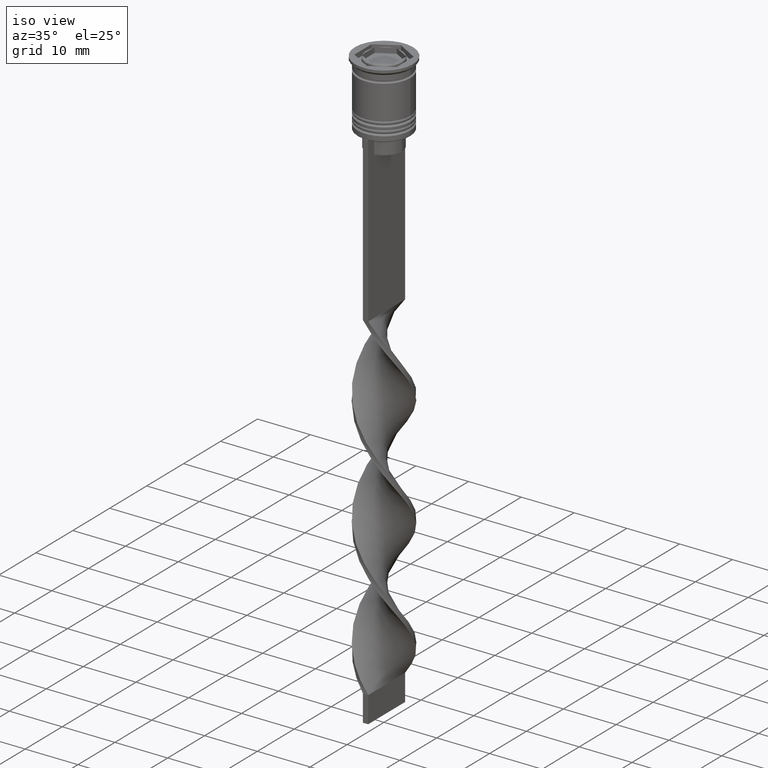
[diagram: clean part render]
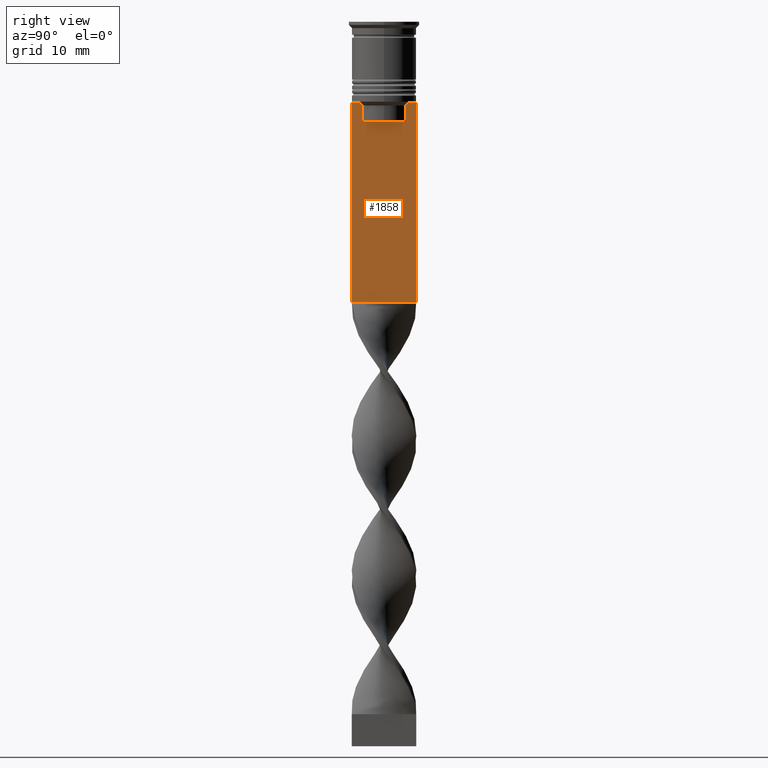
[diagram: tour spotlight — one face highlighted and labeled with its STEP entity id]
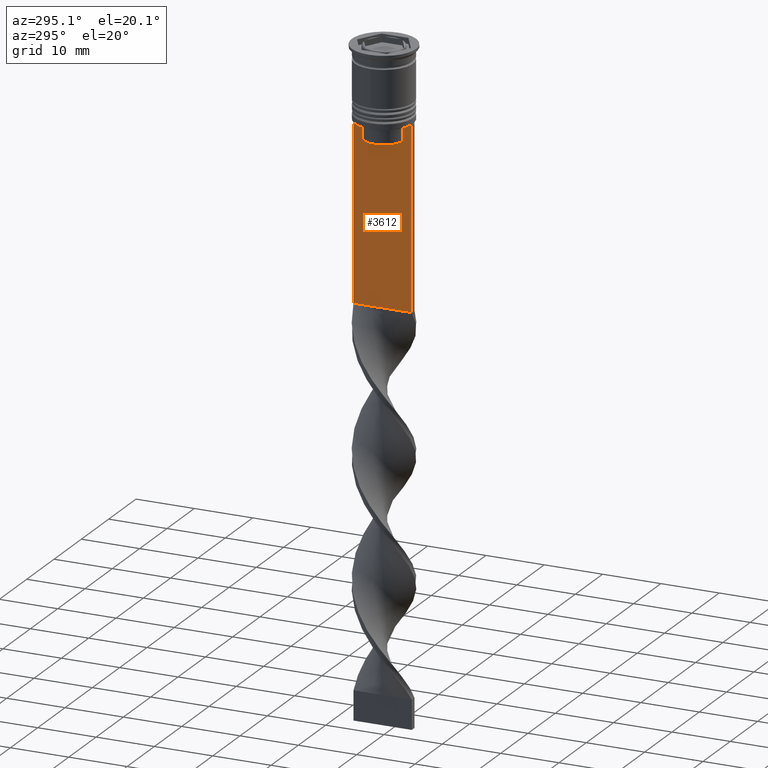
[diagram: tour spotlight — one face highlighted and labeled with its STEP entity id]
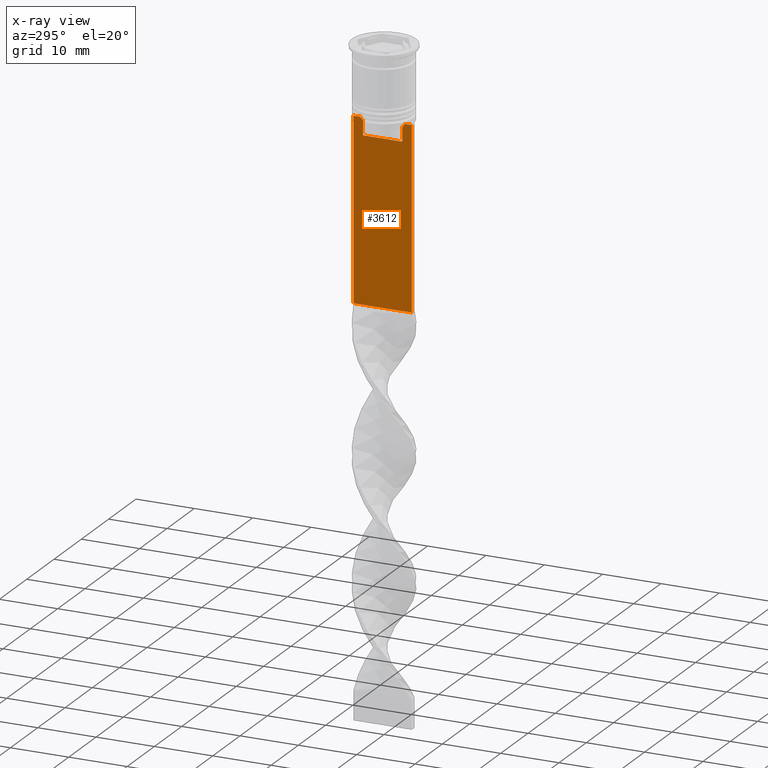
[diagram: x-ray of the same camera — body ghosted, this tour face saturated]
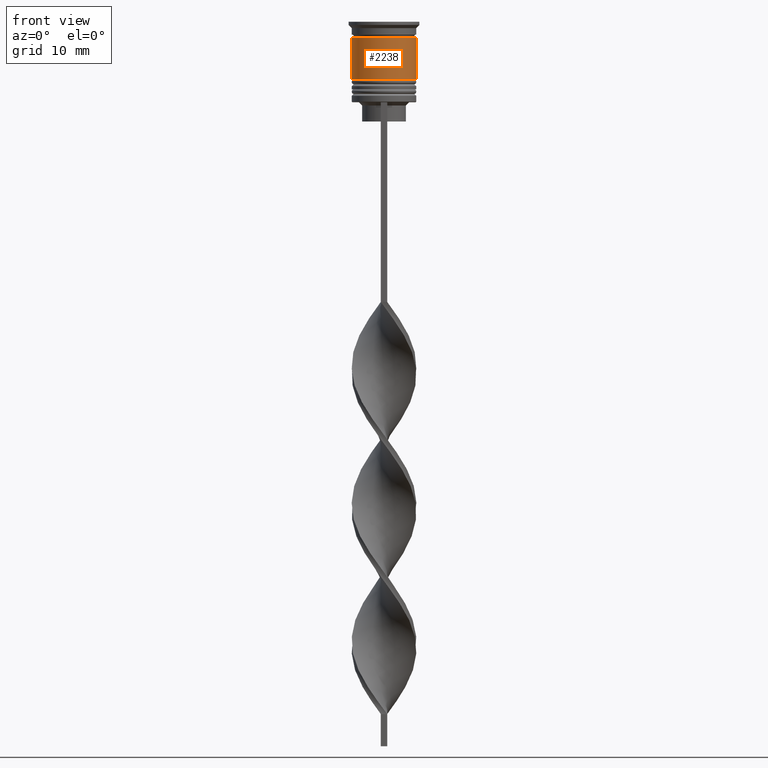
[diagram: tour spotlight — one face highlighted and labeled with its STEP entity id]
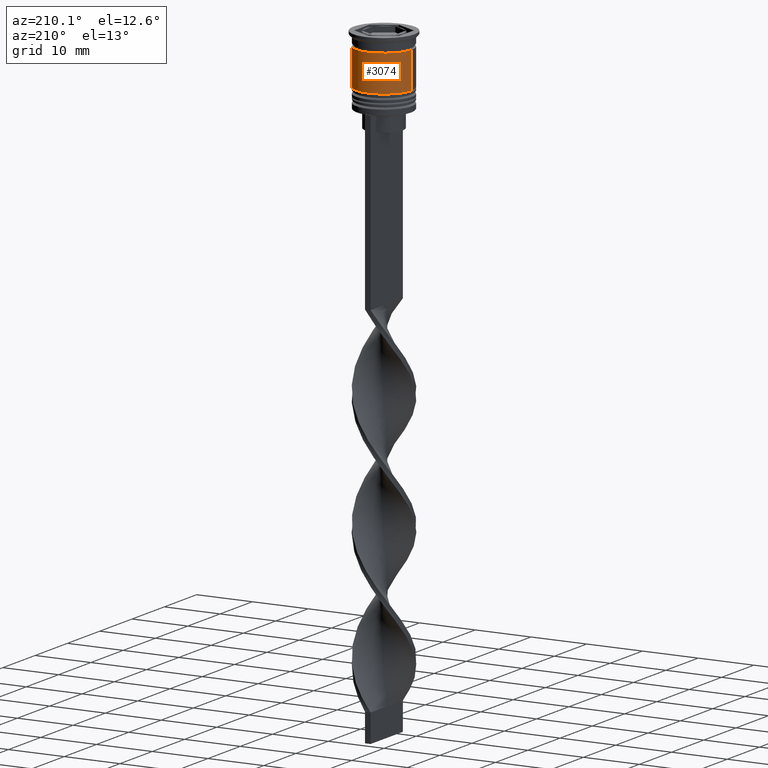
[diagram: tour spotlight — one face highlighted and labeled with its STEP entity id]
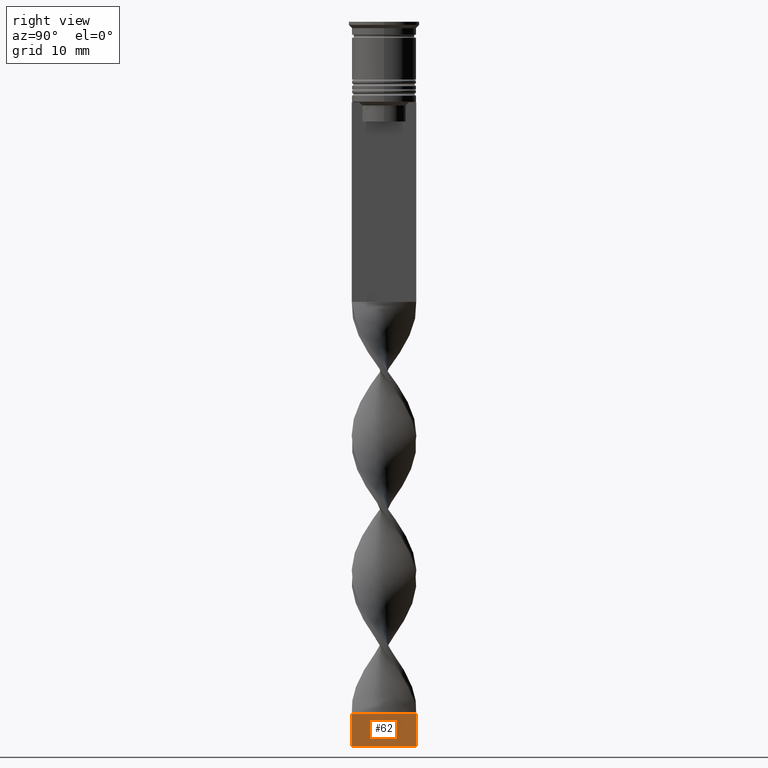
[diagram: tour spotlight — one face highlighted and labeled with its STEP entity id]
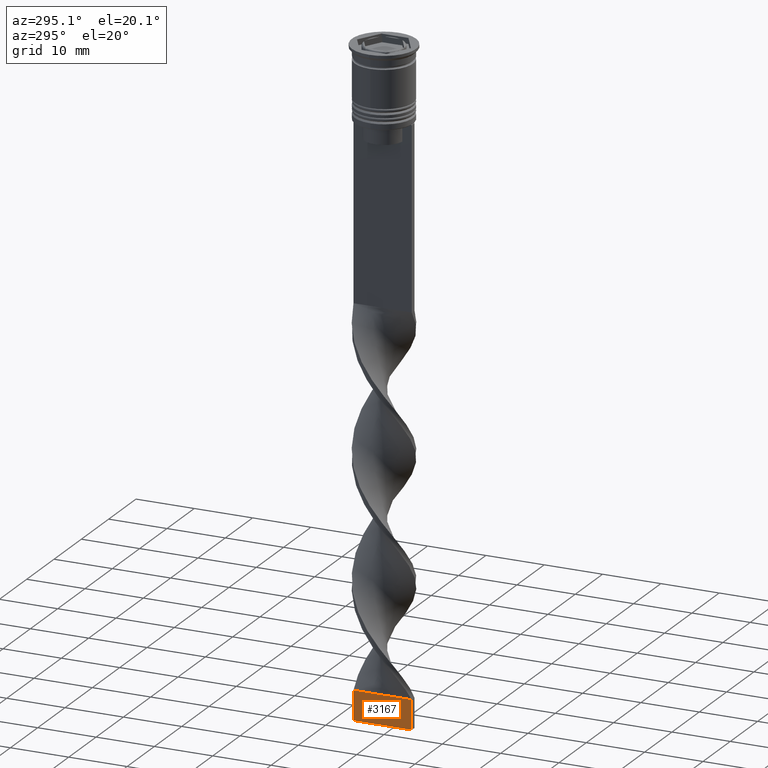
[diagram: tour spotlight — one face highlighted and labeled with its STEP entity id]
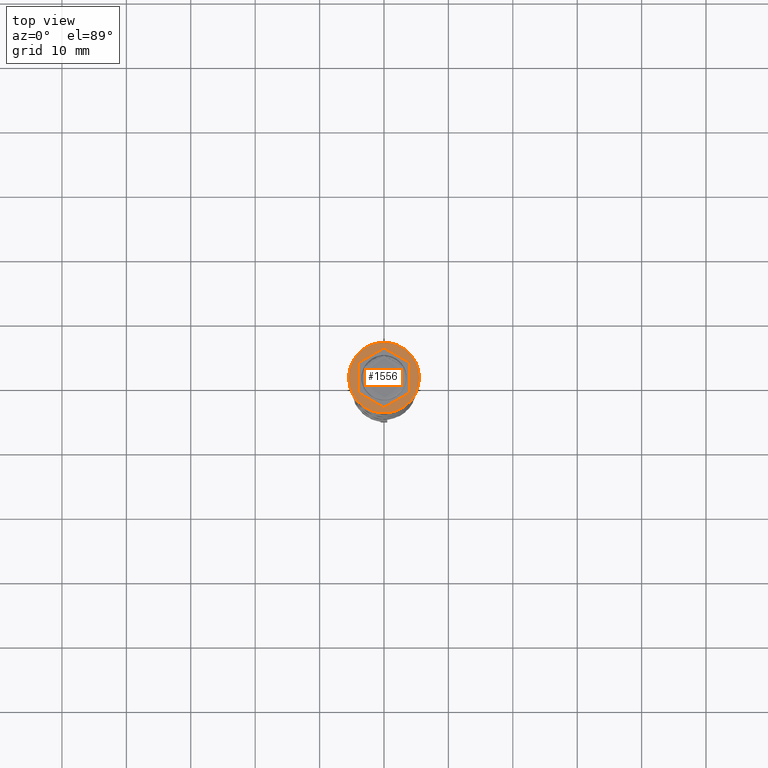
[diagram: tour spotlight — one face highlighted and labeled with its STEP entity id]
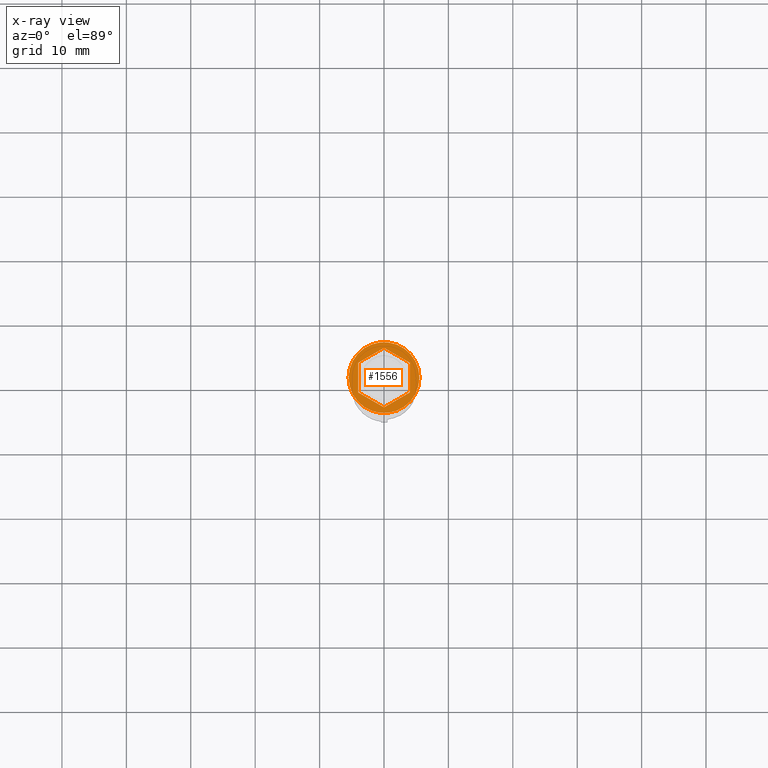
[diagram: x-ray of the same camera — body ghosted, this tour face saturated]
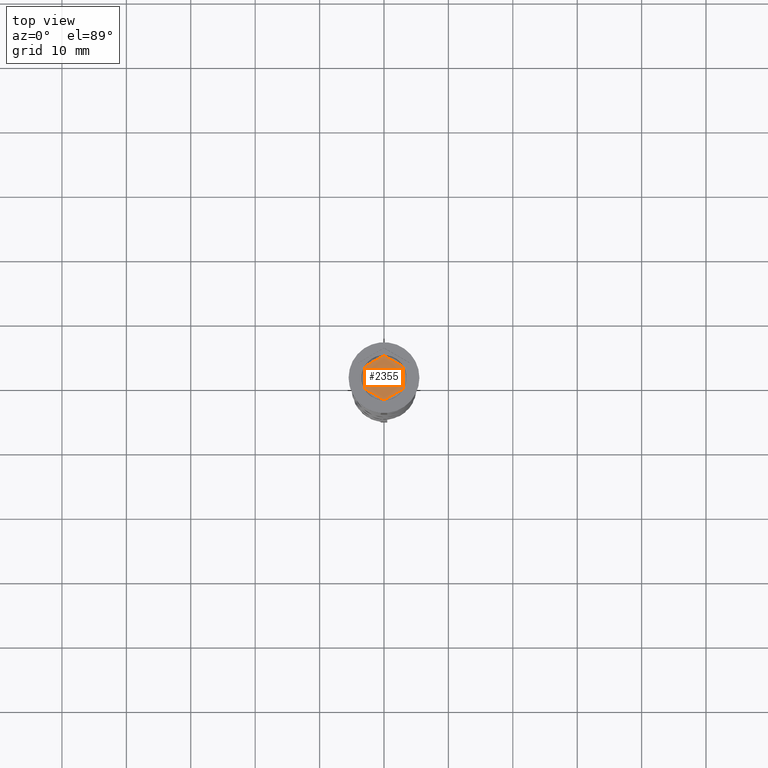
[diagram: tour spotlight — one face highlighted and labeled with its STEP entity id]
A machine part: a face-by-face anatomy tour. The part has 96 B-rep faces; the first image is the clean iso view, then the 8 largest visible faces are spotlighted one at a time (largest first), each with its STEP entity span.

Face 1 — right view, entity #1858. In plain terms, the highlighted planar face has unit normal (-1, 0, 0).
Definition (entity closure, byte-faithful):
#9 = CARTESIAN_POINT ( 'NONE',  ( 0.5000000000000000000, 3.363034344160045652, -15.50000000000000000 ) ) ;
#21 = EDGE_LOOP ( 'NONE', ( #1506, #502, #1681, #2273, #305, #1412, #2191, #3307, #2944, #1868, #1440, #139 ) ) ;
#40 = CARTESIAN_POINT ( 'NONE',  ( 0.5000000000000000000, -4.999999999999999112, -43.50000000000000000 ) ) ;
#41 = EDGE_CURVE ( 'NONE', #319, #3595, #3310, .T. ) ;
#43 = CARTESIAN_POINT ( 'NONE',  ( 0.5000000000000000000, -3.363034344160045208, -13.00000000000000178 ) ) ;
#131 = FACE_OUTER_BOUND ( 'NONE', #21, .T. ) ;
#139 = ORIENTED_EDGE ( 'NONE', *, *, #1111, .T. ) ;
#142 = CARTESIAN_POINT ( 'NONE',  ( 0.5000000000000000000, 5.000000000000000888, -2.450124378879110054 ) ) ;
#149 = CARTESIAN_POINT ( 'NONE',  ( 0.5000000000000000000, -3.363034344160045208, 0.000000000000000000 ) ) ;
#170 = VECTOR ( 'NONE', #282, 1000.000000000000000 ) ;
#282 = DIRECTION ( 'NONE',  ( 0.000000000000000000, -1.000000000000000000, 0.000000000000000000 ) ) ;
#305 = ORIENTED_EDGE ( 'NONE', *, *, #3229, .T. ) ;
#312 = DIRECTION ( 'NONE',  ( 0.000000000000000000, 0.000000000000000000, -1.000000000000000000 ) ) ;
#319 = VERTEX_POINT ( 'NONE', #1618 ) ;
#356 = DIRECTION ( 'NONE',  ( -1.000000000000000000, 0.000000000000000000, 0.000000000000000000 ) ) ;
#364 = VECTOR ( 'NONE', #2489, 1000.000000000000000 ) ;
#381 = VERTEX_POINT ( 'NONE', #2992 ) ;
#462 = EDGE_CURVE ( 'NONE', #2418, #2958, #822, .T. ) ;
#502 = ORIENTED_EDGE ( 'NONE', *, *, #41, .T. ) ;
#510 = CARTESIAN_POINT ( 'NONE',  ( 0.5000000000000000000, 3.363034344160045208, -13.00000000000000178 ) ) ;
#511 = VERTEX_POINT ( 'NONE', #9 ) ;
#519 = LINE ( 'NONE', #2826, #170 ) ;
#565 = EDGE_CURVE ( 'NONE', #2859, #2418, #2511, .T. ) ;
#612 = CARTESIAN_POINT ( 'NONE',  ( 0.5000000000000000000, -4.999999999999999112, -12.50000000000000000 ) ) ;
#658 = VECTOR ( 'NONE', #312, 1000.000000000000000 ) ;
#822 = LINE ( 'NONE', #2228, #3223 ) ;
#850 = VERTEX_POINT ( 'NONE', #3024 ) ;
#860 = CARTESIAN_POINT ( 'NONE',  ( 0.5000000000000000000, -3.363034344160045208, -13.00000000000000178 ) ) ;
#896 = CARTESIAN_POINT ( 'NONE',  ( 0.5000000000000000000, 3.399999999999998135, -15.50000000000000000 ) ) ;
#959 = CARTESIAN_POINT ( 'NONE',  ( 0.5000000000000000000, -4.999999999999999112, -2.450124378879110054 ) ) ;
#960 = EDGE_CURVE ( 'NONE', #2958, #850, #519, .T. ) ;
#1111 = EDGE_CURVE ( 'NONE', #381, #1687, #2066, .T. ) ;
#1185 = DIRECTION ( 'NONE',  ( 0.000000000000000000, -1.000000000000000000, 0.000000000000000000 ) ) ;
#1225 = VERTEX_POINT ( 'NONE', #1807 ) ;
#1237 = CARTESIAN_POINT ( 'NONE',  ( 0.5000000000000000000, 3.867815921162742754, -12.50000000000000000 ) ) ;
#1397 = CARTESIAN_POINT ( 'NONE',  ( 0.5000000000000000000, 5.000000000000000888, -43.50000000000000000 ) ) ;
#1399 = CARTESIAN_POINT ( 'NONE',  ( 0.5000000000000000000, -3.531412985305424801, -12.83345201382502765 ) ) ;
#1412 = ORIENTED_EDGE ( 'NONE', *, *, #565, .T. ) ;
#1440 = ORIENTED_EDGE ( 'NONE', *, *, #3505, .F. ) ;
#1461 = CARTESIAN_POINT ( 'NONE',  ( 0.5000000000000000000, 3.363034344160045208, 0.000000000000000000 ) ) ;
#1506 = ORIENTED_EDGE ( 'NONE', *, *, #2787, .T. ) ;
#1591 = AXIS2_PLACEMENT_3D ( 'NONE', #2107, #356, #3179 ) ;
#1618 = CARTESIAN_POINT ( 'NONE',  ( 0.5000000000000000000, 3.867815921162742754, -12.50000000000000000 ) ) ;
#1636 = VERTEX_POINT ( 'NONE', #40 ) ;
#1681 = ORIENTED_EDGE ( 'NONE', *, *, #2843, .T. ) ;
#1687 = VERTEX_POINT ( 'NONE', #2885 ) ;
#1751 = EDGE_CURVE ( 'NONE', #511, #1225, #2921, .T. ) ;
#1774 = LINE ( 'NONE', #3200, #2631 ) ;
#1807 = CARTESIAN_POINT ( 'NONE',  ( 0.5000000000000000000, -3.363034344160045652, -15.50000000000000000 ) ) ;
#1858 = ADVANCED_FACE ( 'NONE', ( #131 ), #2056, .F. ) ;
#1868 = ORIENTED_EDGE ( 'NONE', *, *, #2964, .T. ) ;
#1912 = VECTOR ( 'NONE', #1185, 1000.000000000000000 ) ;
#1985 = CARTESIAN_POINT ( 'NONE',  ( 0.5000000000000000000, -3.699658232838647365, -12.66676999593996555 ) ) ;
#1999 = CARTESIAN_POINT ( 'NONE',  ( 0.5000000000000000000, -3.867815921162742754, -12.50000000000000000 ) ) ;
#2056 = PLANE ( 'NONE',  #1591 ) ;
#2066 = LINE ( 'NONE', #612, #1912 ) ;
#2107 = CARTESIAN_POINT ( 'NONE',  ( 0.5000000000000000000, -4.999999999999999112, -2.450124378879110054 ) ) ;
#2191 = ORIENTED_EDGE ( 'NONE', *, *, #462, .T. ) ;
#2215 = VERTEX_POINT ( 'NONE', #1397 ) ;
#2228 = CARTESIAN_POINT ( 'NONE',  ( 0.5000000000000000000, -4.999999999999999112, -12.50000000000000000 ) ) ;
#2273 = ORIENTED_EDGE ( 'NONE', *, *, #1751, .T. ) ;
#2274 = CARTESIAN_POINT ( 'NONE',  ( 0.5000000000000000000, 3.531412678228260216, -12.83345231756357840 ) ) ;
#2306 = DIRECTION ( 'NONE',  ( 0.000000000000000000, -1.000000000000000000, 0.000000000000000000 ) ) ;
#2392 = CARTESIAN_POINT ( 'NONE',  ( 0.5000000000000000000, 3.699657965831574913, -12.66677026074361301 ) ) ;
#2418 = VERTEX_POINT ( 'NONE', #3596 ) ;
#2428 = DIRECTION ( 'NONE',  ( 0.000000000000000000, 0.000000000000000000, -1.000000000000000000 ) ) ;
#2433 = LINE ( 'NONE', #149, #364 ) ;
#2489 = DIRECTION ( 'NONE',  ( -0.000000000000000000, -0.000000000000000000, 1.000000000000000000 ) ) ;
#2511 = B_SPLINE_CURVE_WITH_KNOTS ( 'NONE', 3,
 ( #860, #1399, #1985, #1999 ),
 .UNSPECIFIED., .F., .F.,
 ( 4, 4 ),
 ( 0.01632394437298965648, 0.01703543518243618576 ),
 .UNSPECIFIED. ) ;
#2578 = VECTOR ( 'NONE', #2686, 1000.000000000000000 ) ;
#2617 = DIRECTION ( 'NONE',  ( 0.000000000000000000, -1.000000000000000000, 0.000000000000000000 ) ) ;
#2631 = VECTOR ( 'NONE', #2870, 1000.000000000000000 ) ;
#2677 = DIRECTION ( 'NONE',  ( 0.000000000000000000, 1.000000000000000000, 0.000000000000000000 ) ) ;
#2686 = DIRECTION ( 'NONE',  ( 0.000000000000000000, 0.000000000000000000, -1.000000000000000000 ) ) ;
#2704 = LINE ( 'NONE', #142, #3231 ) ;
#2787 = EDGE_CURVE ( 'NONE', #1687, #319, #1774, .T. ) ;
#2826 = CARTESIAN_POINT ( 'NONE',  ( 0.5000000000000000000, -4.999999999999999112, -12.50000000000000000 ) ) ;
#2843 = EDGE_CURVE ( 'NONE', #3595, #511, #3164, .T. ) ;
#2859 = VERTEX_POINT ( 'NONE', #43 ) ;
#2870 = DIRECTION ( 'NONE',  ( 0.000000000000000000, -1.000000000000000000, 0.000000000000000000 ) ) ;
#2885 = CARTESIAN_POINT ( 'NONE',  ( 0.5000000000000000000, 4.874423042781575788, -12.50000000000000000 ) ) ;
#2921 = LINE ( 'NONE', #896, #3393 ) ;
#2944 = ORIENTED_EDGE ( 'NONE', *, *, #3459, .T. ) ;
#2958 = VERTEX_POINT ( 'NONE', #3257 ) ;
#2964 = EDGE_CURVE ( 'NONE', #1636, #2215, #3241, .T. ) ;
#2992 = CARTESIAN_POINT ( 'NONE',  ( 0.5000000000000000000, 5.000000000000000888, -12.50000000000000000 ) ) ;
#3024 = CARTESIAN_POINT ( 'NONE',  ( 0.5000000000000000000, -4.999999999999999112, -12.50000000000000000 ) ) ;
#3041 = VECTOR ( 'NONE', #2677, 1000.000000000000000 ) ;
#3164 = LINE ( 'NONE', #1461, #658 ) ;
#3179 = DIRECTION ( 'NONE',  ( 0.000000000000000000, 0.000000000000000000, 1.000000000000000000 ) ) ;
#3200 = CARTESIAN_POINT ( 'NONE',  ( 0.5000000000000000000, -4.999999999999999112, -12.50000000000000000 ) ) ;
#3202 = CARTESIAN_POINT ( 'NONE',  ( 0.5000000000000000000, 3.363034344160045208, -13.00000000000000178 ) ) ;
#3223 = VECTOR ( 'NONE', #2306, 1000.000000000000000 ) ;
#3228 = LINE ( 'NONE', #959, #2578 ) ;
#3229 = EDGE_CURVE ( 'NONE', #1225, #2859, #2433, .T. ) ;
#3231 = VECTOR ( 'NONE', #2428, 1000.000000000000000 ) ;
#3241 = LINE ( 'NONE', #3517, #3041 ) ;
#3257 = CARTESIAN_POINT ( 'NONE',  ( 0.5000000000000000000, -4.874423042781575788, -12.50000000000000000 ) ) ;
#3307 = ORIENTED_EDGE ( 'NONE', *, *, #960, .T. ) ;
#3310 = B_SPLINE_CURVE_WITH_KNOTS ( 'NONE', 3,
 ( #1237, #2392, #2274, #3202 ),
 .UNSPECIFIED., .F., .F.,
 ( 4, 4 ),
 ( 0.006644825462451552783, 0.007355321358912435097 ),
 .UNSPECIFIED. ) ;
#3393 = VECTOR ( 'NONE', #2617, 1000.000000000000000 ) ;
#3459 = EDGE_CURVE ( 'NONE', #850, #1636, #3228, .T. ) ;
#3505 = EDGE_CURVE ( 'NONE', #381, #2215, #2704, .T. ) ;
#3517 = CARTESIAN_POINT ( 'NONE',  ( 0.5000000000000000000, -4.999999999999999112, -43.50000000000000000 ) ) ;
#3595 = VERTEX_POINT ( 'NONE', #510 ) ;
#3596 = CARTESIAN_POINT ( 'NONE',  ( 0.5000000000000000000, -3.867815921162742754, -12.50000000000000000 ) ) ;

Face 2 — auxiliary view, entity #3612. An x-ray twin of the same camera follows (body ghosted, this face saturated) — the face is partly hidden behind the body. In plain terms, the highlighted planar face has unit normal (-1, 0, 0).
Definition (entity closure, byte-faithful):
#60 = VECTOR ( 'NONE', #669, 1000.000000000000000 ) ;
#77 = CARTESIAN_POINT ( 'NONE',  ( -0.5000000000000000000, 3.867815921162742754, -12.50000000000000000 ) ) ;
#83 = EDGE_CURVE ( 'NONE', #986, #1177, #3145, .T. ) ;
#94 = B_SPLINE_CURVE_WITH_KNOTS ( 'NONE', 3,
 ( #77, #636, #2364, #2672 ),
 .UNSPECIFIED., .F., .F.,
 ( 4, 4 ),
 ( 0.006644825462451552783, 0.007355321358912435097 ),
 .UNSPECIFIED. ) ;
#108 = VECTOR ( 'NONE', #3238, 1000.000000000000000 ) ;
#146 = VERTEX_POINT ( 'NONE', #828 ) ;
#150 = EDGE_CURVE ( 'NONE', #1721, #146, #2028, .T. ) ;
#246 = VECTOR ( 'NONE', #3669, 1000.000000000000000 ) ;
#260 = DIRECTION ( 'NONE',  ( 0.000000000000000000, 0.000000000000000000, -1.000000000000000000 ) ) ;
#265 = ORIENTED_EDGE ( 'NONE', *, *, #83, .F. ) ;
#276 = DIRECTION ( 'NONE',  ( 0.000000000000000000, 0.000000000000000000, -1.000000000000000000 ) ) ;
#371 = ORIENTED_EDGE ( 'NONE', *, *, #582, .F. ) ;
#382 = EDGE_CURVE ( 'NONE', #3464, #1348, #1564, .T. ) ;
#422 = EDGE_CURVE ( 'NONE', #2386, #2137, #1579, .T. ) ;
#445 = CARTESIAN_POINT ( 'NONE',  ( -0.5000000000000000000, 3.399999999999998135, -15.50000000000000000 ) ) ;
#487 = VERTEX_POINT ( 'NONE', #2566 ) ;
#582 = EDGE_CURVE ( 'NONE', #1422, #1721, #94, .T. ) ;
#636 = CARTESIAN_POINT ( 'NONE',  ( -0.5000000000000000000, 3.699657965831574913, -12.66677026074361301 ) ) ;
#669 = DIRECTION ( 'NONE',  ( 0.000000000000000000, -1.000000000000000000, 0.000000000000000000 ) ) ;
#765 = CARTESIAN_POINT ( 'NONE',  ( -0.5000000000000000000, 5.000000000000000888, -2.450124378879110054 ) ) ;
#802 = CARTESIAN_POINT ( 'NONE',  ( -0.5000000000000000000, -4.874423042781575788, -12.50000000000000000 ) ) ;
#828 = CARTESIAN_POINT ( 'NONE',  ( -0.5000000000000000000, 3.363034344160045652, -15.50000000000000000 ) ) ;
#834 = VECTOR ( 'NONE', #2812, 1000.000000000000000 ) ;
#986 = VERTEX_POINT ( 'NONE', #2242 ) ;
#987 = EDGE_CURVE ( 'NONE', #1177, #1348, #1996, .T. ) ;
#1005 = LINE ( 'NONE', #445, #1903 ) ;
#1042 = EDGE_CURVE ( 'NONE', #2529, #2386, #2725, .T. ) ;
#1159 = EDGE_CURVE ( 'NONE', #1738, #1422, #2361, .T. ) ;
#1161 = DIRECTION ( 'NONE',  ( 0.000000000000000000, -1.000000000000000000, 0.000000000000000000 ) ) ;
#1177 = VERTEX_POINT ( 'NONE', #3449 ) ;
#1315 = PLANE ( 'NONE',  #3168 ) ;
#1348 = VERTEX_POINT ( 'NONE', #2280 ) ;
#1356 = CARTESIAN_POINT ( 'NONE',  ( -0.5000000000000000000, -3.363034344160045208, -13.00000000000000178 ) ) ;
#1371 = DIRECTION ( 'NONE',  ( 0.000000000000000000, 0.000000000000000000, 1.000000000000000000 ) ) ;
#1389 = CARTESIAN_POINT ( 'NONE',  ( -0.5000000000000000000, -4.999999999999999112, -2.450124378879110054 ) ) ;
#1400 = CARTESIAN_POINT ( 'NONE',  ( -0.5000000000000000000, 3.363034344160045208, -13.00000000000000178 ) ) ;
#1415 = DIRECTION ( 'NONE',  ( 0.000000000000000000, -1.000000000000000000, 0.000000000000000000 ) ) ;
#1422 = VERTEX_POINT ( 'NONE', #3147 ) ;
#1512 = CARTESIAN_POINT ( 'NONE',  ( -0.5000000000000000000, 4.874423042781575788, -12.50000000000000000 ) ) ;
#1564 = LINE ( 'NONE', #765, #2265 ) ;
#1578 = EDGE_CURVE ( 'NONE', #3464, #1738, #3107, .T. ) ;
#1579 = LINE ( 'NONE', #3419, #834 ) ;
#1586 = CARTESIAN_POINT ( 'NONE',  ( -0.5000000000000000000, 5.000000000000000888, -12.50000000000000000 ) ) ;
#1622 = ORIENTED_EDGE ( 'NONE', *, *, #1578, .F. ) ;
#1685 = DIRECTION ( 'NONE',  ( -1.000000000000000000, 0.000000000000000000, 0.000000000000000000 ) ) ;
#1708 = ORIENTED_EDGE ( 'NONE', *, *, #2139, .F. ) ;
#1721 = VERTEX_POINT ( 'NONE', #1400 ) ;
#1738 = VERTEX_POINT ( 'NONE', #1512 ) ;
#1770 = EDGE_CURVE ( 'NONE', #487, #2529, #3533, .T. ) ;
#1867 = DIRECTION ( 'NONE',  ( 0.000000000000000000, -1.000000000000000000, 0.000000000000000000 ) ) ;
#1903 = VECTOR ( 'NONE', #1867, 1000.000000000000000 ) ;
#1904 = DIRECTION ( 'NONE',  ( 0.000000000000000000, 0.000000000000000000, -1.000000000000000000 ) ) ;
#1911 = ORIENTED_EDGE ( 'NONE', *, *, #422, .F. ) ;
#1942 = CARTESIAN_POINT ( 'NONE',  ( -0.5000000000000000000, -3.699658232838647365, -12.66676999593996555 ) ) ;
#1996 = LINE ( 'NONE', #3135, #246 ) ;
#2007 = CARTESIAN_POINT ( 'NONE',  ( -0.5000000000000000000, 3.363034344160045208, 0.000000000000000000 ) ) ;
#2028 = LINE ( 'NONE', #2007, #2504 ) ;
#2137 = VERTEX_POINT ( 'NONE', #802 ) ;
#2139 = EDGE_CURVE ( 'NONE', #2137, #986, #2881, .T. ) ;
#2159 = CARTESIAN_POINT ( 'NONE',  ( -0.5000000000000000000, -3.363034344160045208, -13.00000000000000178 ) ) ;
#2189 = ORIENTED_EDGE ( 'NONE', *, *, #2996, .F. ) ;
#2242 = CARTESIAN_POINT ( 'NONE',  ( -0.5000000000000000000, -4.999999999999999112, -12.50000000000000000 ) ) ;
#2260 = CARTESIAN_POINT ( 'NONE',  ( -0.5000000000000000000, -4.999999999999999112, -12.50000000000000000 ) ) ;
#2265 = VECTOR ( 'NONE', #1904, 1000.000000000000000 ) ;
#2280 = CARTESIAN_POINT ( 'NONE',  ( -0.5000000000000000000, 5.000000000000000888, -43.50000000000000000 ) ) ;
#2361 = LINE ( 'NONE', #2613, #60 ) ;
#2364 = CARTESIAN_POINT ( 'NONE',  ( -0.5000000000000000000, 3.531412678228260216, -12.83345231756357840 ) ) ;
#2386 = VERTEX_POINT ( 'NONE', #3267 ) ;
#2504 = VECTOR ( 'NONE', #260, 1000.000000000000000 ) ;
#2505 = CARTESIAN_POINT ( 'NONE',  ( -0.5000000000000000000, -3.531412985305424801, -12.83345201382502765 ) ) ;
#2526 = EDGE_LOOP ( 'NONE', ( #371, #3426, #1622, #3208, #3303, #265, #1708, #1911, #2842, #2664, #2189, #3447 ) ) ;
#2529 = VERTEX_POINT ( 'NONE', #2159 ) ;
#2566 = CARTESIAN_POINT ( 'NONE',  ( -0.5000000000000000000, -3.363034344160045652, -15.50000000000000000 ) ) ;
#2568 = VECTOR ( 'NONE', #1415, 1000.000000000000000 ) ;
#2613 = CARTESIAN_POINT ( 'NONE',  ( -0.5000000000000000000, -4.999999999999999112, -12.50000000000000000 ) ) ;
#2621 = VECTOR ( 'NONE', #276, 1000.000000000000000 ) ;
#2664 = ORIENTED_EDGE ( 'NONE', *, *, #1770, .F. ) ;
#2672 = CARTESIAN_POINT ( 'NONE',  ( -0.5000000000000000000, 3.363034344160045208, -13.00000000000000178 ) ) ;
#2725 = B_SPLINE_CURVE_WITH_KNOTS ( 'NONE', 3,
 ( #1356, #2505, #1942, #3080 ),
 .UNSPECIFIED., .F., .F.,
 ( 4, 4 ),
 ( 0.01632394437298965648, 0.01703543518243618576 ),
 .UNSPECIFIED. ) ;
#2796 = FACE_OUTER_BOUND ( 'NONE', #2526, .T. ) ;
#2812 = DIRECTION ( 'NONE',  ( 0.000000000000000000, -1.000000000000000000, 0.000000000000000000 ) ) ;
#2842 = ORIENTED_EDGE ( 'NONE', *, *, #1042, .F. ) ;
#2881 = LINE ( 'NONE', #2260, #2568 ) ;
#2906 = CARTESIAN_POINT ( 'NONE',  ( -0.5000000000000000000, -4.999999999999999112, -2.450124378879110054 ) ) ;
#2996 = EDGE_CURVE ( 'NONE', #146, #487, #1005, .T. ) ;
#3080 = CARTESIAN_POINT ( 'NONE',  ( -0.5000000000000000000, -3.867815921162742754, -12.50000000000000000 ) ) ;
#3096 = VECTOR ( 'NONE', #1161, 1000.000000000000000 ) ;
#3107 = LINE ( 'NONE', #3674, #3096 ) ;
#3135 = CARTESIAN_POINT ( 'NONE',  ( -0.5000000000000000000, -4.999999999999999112, -43.50000000000000000 ) ) ;
#3145 = LINE ( 'NONE', #2906, #2621 ) ;
#3147 = CARTESIAN_POINT ( 'NONE',  ( -0.5000000000000000000, 3.867815921162742754, -12.50000000000000000 ) ) ;
#3168 = AXIS2_PLACEMENT_3D ( 'NONE', #1389, #1685, #1371 ) ;
#3208 = ORIENTED_EDGE ( 'NONE', *, *, #382, .T. ) ;
#3238 = DIRECTION ( 'NONE',  ( -0.000000000000000000, -0.000000000000000000, 1.000000000000000000 ) ) ;
#3253 = CARTESIAN_POINT ( 'NONE',  ( -0.5000000000000000000, -3.363034344160045208, 0.000000000000000000 ) ) ;
#3267 = CARTESIAN_POINT ( 'NONE',  ( -0.5000000000000000000, -3.867815921162742754, -12.50000000000000000 ) ) ;
#3303 = ORIENTED_EDGE ( 'NONE', *, *, #987, .F. ) ;
#3419 = CARTESIAN_POINT ( 'NONE',  ( -0.5000000000000000000, -4.999999999999999112, -12.50000000000000000 ) ) ;
#3426 = ORIENTED_EDGE ( 'NONE', *, *, #1159, .F. ) ;
#3447 = ORIENTED_EDGE ( 'NONE', *, *, #150, .F. ) ;
#3449 = CARTESIAN_POINT ( 'NONE',  ( -0.5000000000000000000, -4.999999999999999112, -43.50000000000000000 ) ) ;
#3464 = VERTEX_POINT ( 'NONE', #1586 ) ;
#3533 = LINE ( 'NONE', #3253, #108 ) ;
#3612 = ADVANCED_FACE ( 'NONE', ( #2796 ), #1315, .T. ) ;
#3669 = DIRECTION ( 'NONE',  ( 0.000000000000000000, 1.000000000000000000, 0.000000000000000000 ) ) ;
#3674 = CARTESIAN_POINT ( 'NONE',  ( -0.5000000000000000000, -4.999999999999999112, -12.50000000000000000 ) ) ;

Face 3 — front view, entity #2238. In plain terms, the highlighted cylindrical surface (edge-blend (fillet) strip) has radius 5 mm, axis along (-0, -0, 1).
Definition (entity closure, byte-faithful):
#4 = DIRECTION ( 'NONE',  ( -0.000000000000000000, -0.000000000000000000, 1.000000000000000000 ) ) ;
#187 = VECTOR ( 'NONE', #699, 1000.000000000000000 ) ;
#191 = DIRECTION ( 'NONE',  ( -0.000000000000000000, -0.000000000000000000, 1.000000000000000000 ) ) ;
#249 = AXIS2_PLACEMENT_3D ( 'NONE', #977, #1013, #397 ) ;
#397 = DIRECTION ( 'NONE',  ( 1.000000000000000000, 0.000000000000000000, 0.000000000000000000 ) ) ;
#499 = DIRECTION ( 'NONE',  ( 1.000000000000000000, 0.000000000000000000, 0.000000000000000000 ) ) ;
#699 = DIRECTION ( 'NONE',  ( -0.000000000000000000, -0.000000000000000000, 1.000000000000000000 ) ) ;
#942 = AXIS2_PLACEMENT_3D ( 'NONE', #1437, #4, #2531 ) ;
#977 = CARTESIAN_POINT ( 'NONE',  ( 0.000000000000000000, 0.000000000000000000, -2.500000000000000000 ) ) ;
#1008 = ORIENTED_EDGE ( 'NONE', *, *, #3391, .F. ) ;
#1013 = DIRECTION ( 'NONE',  ( -0.000000000000000000, -0.000000000000000000, 1.000000000000000000 ) ) ;
#1179 = CARTESIAN_POINT ( 'NONE',  ( -4.999999999999999112, 6.123233995736766282E-16, -2.500000000000000000 ) ) ;
#1213 = VERTEX_POINT ( 'NONE', #3474 ) ;
#1217 = CARTESIAN_POINT ( 'NONE',  ( 5.000000000000000888, 0.000000000000000000, -9.000000000000001776 ) ) ;
#1240 = CIRCLE ( 'NONE', #1715, 5.000000000000000888 ) ;
#1321 = LINE ( 'NONE', #2414, #2083 ) ;
#1437 = CARTESIAN_POINT ( 'NONE',  ( 0.000000000000000000, 0.000000000000000000, 0.000000000000000000 ) ) ;
#1464 = VERTEX_POINT ( 'NONE', #1179 ) ;
#1481 = ORIENTED_EDGE ( 'NONE', *, *, #3383, .F. ) ;
#1715 = AXIS2_PLACEMENT_3D ( 'NONE', #3323, #191, #499 ) ;
#1847 = CIRCLE ( 'NONE', #249, 4.999999999999999112 ) ;
#1938 = EDGE_CURVE ( 'NONE', #2282, #3380, #1240, .T. ) ;
#2083 = VECTOR ( 'NONE', #2162, 1000.000000000000000 ) ;
#2101 = LINE ( 'NONE', #3018, #187 ) ;
#2162 = DIRECTION ( 'NONE',  ( -0.000000000000000000, -0.000000000000000000, 1.000000000000000000 ) ) ;
#2179 = CARTESIAN_POINT ( 'NONE',  ( -5.000000000000000888, 6.123233995736767268E-16, -9.000000000000001776 ) ) ;
#2238 = ADVANCED_FACE ( 'NONE', ( #3432 ), #3100, .T. ) ;
#2245 = ORIENTED_EDGE ( 'NONE', *, *, #2350, .T. ) ;
#2282 = VERTEX_POINT ( 'NONE', #2179 ) ;
#2350 = EDGE_CURVE ( 'NONE', #3380, #1213, #1321, .T. ) ;
#2414 = CARTESIAN_POINT ( 'NONE',  ( 5.000000000000000000, 0.000000000000000000, 0.000000000000000000 ) ) ;
#2531 = DIRECTION ( 'NONE',  ( 1.000000000000000000, 0.000000000000000000, 0.000000000000000000 ) ) ;
#2737 = EDGE_LOOP ( 'NONE', ( #1481, #2780, #2245, #1008 ) ) ;
#2780 = ORIENTED_EDGE ( 'NONE', *, *, #1938, .T. ) ;
#3018 = CARTESIAN_POINT ( 'NONE',  ( -5.000000000000000000, 6.123233995736766282E-16, 0.000000000000000000 ) ) ;
#3100 = CYLINDRICAL_SURFACE ( 'NONE', #942, 5.000000000000000000 ) ;
#3323 = CARTESIAN_POINT ( 'NONE',  ( 0.000000000000000000, 0.000000000000000000, -9.000000000000001776 ) ) ;
#3380 = VERTEX_POINT ( 'NONE', #1217 ) ;
#3383 = EDGE_CURVE ( 'NONE', #2282, #1464, #2101, .T. ) ;
#3391 = EDGE_CURVE ( 'NONE', #1464, #1213, #1847, .T. ) ;
#3432 = FACE_OUTER_BOUND ( 'NONE', #2737, .T. ) ;
#3474 = CARTESIAN_POINT ( 'NONE',  ( 4.999999999999999112, 0.000000000000000000, -2.500000000000000000 ) ) ;

Face 4 — auxiliary view, entity #3074. In plain terms, the highlighted cylindrical surface (edge-blend (fillet) strip) has radius 5 mm, axis along (-0, -0, 1).
Definition (entity closure, byte-faithful):
#129 = EDGE_CURVE ( 'NONE', #1213, #1464, #1301, .T. ) ;
#163 = CARTESIAN_POINT ( 'NONE',  ( 0.000000000000000000, 0.000000000000000000, -9.000000000000001776 ) ) ;
#187 = VECTOR ( 'NONE', #699, 1000.000000000000000 ) ;
#409 = FACE_OUTER_BOUND ( 'NONE', #1819, .T. ) ;
#536 = AXIS2_PLACEMENT_3D ( 'NONE', #163, #2487, #2471 ) ;
#699 = DIRECTION ( 'NONE',  ( -0.000000000000000000, -0.000000000000000000, 1.000000000000000000 ) ) ;
#769 = EDGE_CURVE ( 'NONE', #3380, #2282, #1786, .T. ) ;
#776 = ORIENTED_EDGE ( 'NONE', *, *, #3383, .T. ) ;
#1179 = CARTESIAN_POINT ( 'NONE',  ( -4.999999999999999112, 6.123233995736766282E-16, -2.500000000000000000 ) ) ;
#1213 = VERTEX_POINT ( 'NONE', #3474 ) ;
#1217 = CARTESIAN_POINT ( 'NONE',  ( 5.000000000000000888, 0.000000000000000000, -9.000000000000001776 ) ) ;
#1301 = CIRCLE ( 'NONE', #3638, 4.999999999999999112 ) ;
#1321 = LINE ( 'NONE', #2414, #2083 ) ;
#1464 = VERTEX_POINT ( 'NONE', #1179 ) ;
#1726 = ORIENTED_EDGE ( 'NONE', *, *, #2350, .F. ) ;
#1786 = CIRCLE ( 'NONE', #536, 5.000000000000000888 ) ;
#1819 = EDGE_LOOP ( 'NONE', ( #2575, #776, #2798, #1726 ) ) ;
#2083 = VECTOR ( 'NONE', #2162, 1000.000000000000000 ) ;
#2101 = LINE ( 'NONE', #3018, #187 ) ;
#2162 = DIRECTION ( 'NONE',  ( -0.000000000000000000, -0.000000000000000000, 1.000000000000000000 ) ) ;
#2171 = DIRECTION ( 'NONE',  ( -0.000000000000000000, -0.000000000000000000, 1.000000000000000000 ) ) ;
#2179 = CARTESIAN_POINT ( 'NONE',  ( -5.000000000000000888, 6.123233995736767268E-16, -9.000000000000001776 ) ) ;
#2282 = VERTEX_POINT ( 'NONE', #2179 ) ;
#2350 = EDGE_CURVE ( 'NONE', #3380, #1213, #1321, .T. ) ;
#2372 = DIRECTION ( 'NONE',  ( -0.000000000000000000, -0.000000000000000000, 1.000000000000000000 ) ) ;
#2380 = CYLINDRICAL_SURFACE ( 'NONE', #2519, 5.000000000000000000 ) ;
#2414 = CARTESIAN_POINT ( 'NONE',  ( 5.000000000000000000, 0.000000000000000000, 0.000000000000000000 ) ) ;
#2471 = DIRECTION ( 'NONE',  ( 1.000000000000000000, 0.000000000000000000, 0.000000000000000000 ) ) ;
#2487 = DIRECTION ( 'NONE',  ( -0.000000000000000000, -0.000000000000000000, 1.000000000000000000 ) ) ;
#2519 = AXIS2_PLACEMENT_3D ( 'NONE', #2700, #2171, #3537 ) ;
#2575 = ORIENTED_EDGE ( 'NONE', *, *, #769, .T. ) ;
#2653 = CARTESIAN_POINT ( 'NONE',  ( 0.000000000000000000, 0.000000000000000000, -2.500000000000000000 ) ) ;
#2700 = CARTESIAN_POINT ( 'NONE',  ( 0.000000000000000000, 0.000000000000000000, 0.000000000000000000 ) ) ;
#2798 = ORIENTED_EDGE ( 'NONE', *, *, #129, .F. ) ;
#3018 = CARTESIAN_POINT ( 'NONE',  ( -5.000000000000000000, 6.123233995736766282E-16, 0.000000000000000000 ) ) ;
#3074 = ADVANCED_FACE ( 'NONE', ( #409 ), #2380, .T. ) ;
#3380 = VERTEX_POINT ( 'NONE', #1217 ) ;
#3383 = EDGE_CURVE ( 'NONE', #2282, #1464, #2101, .T. ) ;
#3443 = DIRECTION ( 'NONE',  ( 1.000000000000000000, 0.000000000000000000, 0.000000000000000000 ) ) ;
#3474 = CARTESIAN_POINT ( 'NONE',  ( 4.999999999999999112, 0.000000000000000000, -2.500000000000000000 ) ) ;
#3537 = DIRECTION ( 'NONE',  ( 1.000000000000000000, 0.000000000000000000, 0.000000000000000000 ) ) ;
#3638 = AXIS2_PLACEMENT_3D ( 'NONE', #2653, #2372, #3443 ) ;

Face 5 — right view, entity #62. In plain terms, the highlighted planar face has unit normal (-1, 0, 0).
Definition (entity closure, byte-faithful):
#62 = ADVANCED_FACE ( 'NONE', ( #1704 ), #918, .F. ) ;
#107 = CARTESIAN_POINT ( 'NONE',  ( 0.5000000000000006661, 4.999999999999999112, -112.5000000000000000 ) ) ;
#113 = DIRECTION ( 'NONE',  ( -0.000000000000000000, -0.000000000000000000, 1.000000000000000000 ) ) ;
#219 = DIRECTION ( 'NONE',  ( -0.000000000000000000, -0.000000000000000000, 1.000000000000000000 ) ) ;
#593 = ORIENTED_EDGE ( 'NONE', *, *, #1408, .F. ) ;
#651 = VECTOR ( 'NONE', #2347, 1000.000000000000000 ) ;
#693 = CARTESIAN_POINT ( 'NONE',  ( 0.4999999999999993339, -5.000000000000000888, -112.5000000000000000 ) ) ;
#918 = PLANE ( 'NONE',  #3452 ) ;
#966 = CARTESIAN_POINT ( 'NONE',  ( 0.5000000000000006661, 4.999999999999999112, -112.5000000000000000 ) ) ;
#1165 = CARTESIAN_POINT ( 'NONE',  ( 0.4999999999999993339, -5.000000000000000888, -112.5000000000000000 ) ) ;
#1259 = CARTESIAN_POINT ( 'NONE',  ( 0.5000000000000006661, 4.999999999999999112, -107.5000000000000000 ) ) ;
#1390 = VERTEX_POINT ( 'NONE', #2823 ) ;
#1408 = EDGE_CURVE ( 'NONE', #3001, #1390, #3470, .T. ) ;
#1447 = CARTESIAN_POINT ( 'NONE',  ( 0.5000000000000006661, 4.999999999999999112, -112.5000000000000000 ) ) ;
#1526 = LINE ( 'NONE', #107, #651 ) ;
#1550 = B_SPLINE_CURVE_WITH_KNOTS ( 'NONE', 3,
 ( #2751, #1924, #1576, #2786 ),
 .UNSPECIFIED., .F., .F.,
 ( 4, 4 ),
 ( 0.000000000000000000, 1.000000000000000000 ),
 .UNSPECIFIED. ) ;
#1576 = CARTESIAN_POINT ( 'NONE',  ( 0.4999999999999997780, -1.666666666666667851, -107.5000000000000000 ) ) ;
#1704 = FACE_OUTER_BOUND ( 'NONE', #1878, .T. ) ;
#1775 = DIRECTION ( 'NONE',  ( -1.301042606982605321E-16, -1.000000000000000000, 0.000000000000000000 ) ) ;
#1796 = EDGE_CURVE ( 'NONE', #1869, #3001, #1526, .T. ) ;
#1869 = VERTEX_POINT ( 'NONE', #966 ) ;
#1878 = EDGE_LOOP ( 'NONE', ( #2408, #593, #2909, #3522 ) ) ;
#1924 = CARTESIAN_POINT ( 'NONE',  ( 0.5000000000000002220, 1.666666666666666075, -107.5000000000000000 ) ) ;
#2026 = DIRECTION ( 'NONE',  ( -1.000000000000000000, 1.301042606982605321E-16, 0.000000000000000000 ) ) ;
#2093 = EDGE_CURVE ( 'NONE', #2524, #1390, #1550, .T. ) ;
#2347 = DIRECTION ( 'NONE',  ( -1.301042606982605321E-16, -1.000000000000000000, 0.000000000000000000 ) ) ;
#2408 = ORIENTED_EDGE ( 'NONE', *, *, #2093, .T. ) ;
#2524 = VERTEX_POINT ( 'NONE', #1259 ) ;
#2649 = EDGE_CURVE ( 'NONE', #1869, #2524, #3056, .T. ) ;
#2751 = CARTESIAN_POINT ( 'NONE',  ( 0.5000000000000006661, 4.999999999999999112, -107.5000000000000000 ) ) ;
#2786 = CARTESIAN_POINT ( 'NONE',  ( 0.4999999999999993339, -5.000000000000000888, -107.5000000000000000 ) ) ;
#2823 = CARTESIAN_POINT ( 'NONE',  ( 0.4999999999999993339, -5.000000000000000888, -107.5000000000000000 ) ) ;
#2909 = ORIENTED_EDGE ( 'NONE', *, *, #1796, .F. ) ;
#2930 = VECTOR ( 'NONE', #219, 1000.000000000000000 ) ;
#3001 = VERTEX_POINT ( 'NONE', #693 ) ;
#3056 = LINE ( 'NONE', #3614, #2930 ) ;
#3392 = VECTOR ( 'NONE', #113, 1000.000000000000000 ) ;
#3452 = AXIS2_PLACEMENT_3D ( 'NONE', #1447, #2026, #1775 ) ;
#3470 = LINE ( 'NONE', #1165, #3392 ) ;
#3522 = ORIENTED_EDGE ( 'NONE', *, *, #2649, .T. ) ;
#3614 = CARTESIAN_POINT ( 'NONE',  ( 0.5000000000000006661, 4.999999999999999112, -112.5000000000000000 ) ) ;

Face 6 — auxiliary view, entity #3167. In plain terms, the highlighted planar face has unit normal (1, -0, 0).
Definition (entity closure, byte-faithful):
#186 = LINE ( 'NONE', #1589, #3641 ) ;
#199 = VERTEX_POINT ( 'NONE', #2681 ) ;
#341 = DIRECTION ( 'NONE',  ( -0.000000000000000000, -0.000000000000000000, 1.000000000000000000 ) ) ;
#435 = VERTEX_POINT ( 'NONE', #1118 ) ;
#598 = CARTESIAN_POINT ( 'NONE',  ( -0.5000000000000006661, -5.000000000000000888, -112.5000000000000000 ) ) ;
#639 = LINE ( 'NONE', #2605, #948 ) ;
#775 = CARTESIAN_POINT ( 'NONE',  ( -0.4999999999999993339, 4.999999999999999112, -107.5000000000000000 ) ) ;
#909 = VERTEX_POINT ( 'NONE', #1115 ) ;
#948 = VECTOR ( 'NONE', #341, 1000.000000000000000 ) ;
#975 = ORIENTED_EDGE ( 'NONE', *, *, #2942, .T. ) ;
#976 = CARTESIAN_POINT ( 'NONE',  ( -0.4999999999999993339, 4.999999999999999112, -107.5000000000000000 ) ) ;
#1033 = CARTESIAN_POINT ( 'NONE',  ( -0.5000000000000006661, -5.000000000000000888, -107.5000000000000000 ) ) ;
#1055 = DIRECTION ( 'NONE',  ( 1.301042606982605321E-16, 1.000000000000000000, 0.000000000000000000 ) ) ;
#1115 = CARTESIAN_POINT ( 'NONE',  ( -0.4999999999999993339, 4.999999999999999112, -112.5000000000000000 ) ) ;
#1118 = CARTESIAN_POINT ( 'NONE',  ( -0.5000000000000006661, -5.000000000000000888, -107.5000000000000000 ) ) ;
#1285 = B_SPLINE_CURVE_WITH_KNOTS ( 'NONE', 3,
 ( #1033, #3542, #2175, #976 ),
 .UNSPECIFIED., .F., .F.,
 ( 4, 4 ),
 ( 0.000000000000000000, 1.000000000000000000 ),
 .UNSPECIFIED. ) ;
#1344 = ORIENTED_EDGE ( 'NONE', *, *, #2510, .F. ) ;
#1347 = PLANE ( 'NONE',  #1975 ) ;
#1428 = VECTOR ( 'NONE', #2442, 1000.000000000000000 ) ;
#1439 = DIRECTION ( 'NONE',  ( 1.301042606982605321E-16, 1.000000000000000000, 0.000000000000000000 ) ) ;
#1589 = CARTESIAN_POINT ( 'NONE',  ( -0.5000000000000006661, -5.000000000000000888, -112.5000000000000000 ) ) ;
#1607 = CARTESIAN_POINT ( 'NONE',  ( -0.4999999999999993339, 4.999999999999999112, -112.5000000000000000 ) ) ;
#1975 = AXIS2_PLACEMENT_3D ( 'NONE', #598, #2188, #1439 ) ;
#1998 = FACE_OUTER_BOUND ( 'NONE', #3115, .T. ) ;
#2175 = CARTESIAN_POINT ( 'NONE',  ( -0.4999999999999997780, 1.666666666666666075, -107.5000000000000000 ) ) ;
#2188 = DIRECTION ( 'NONE',  ( 1.000000000000000000, -1.301042606982605321E-16, 0.000000000000000000 ) ) ;
#2327 = EDGE_CURVE ( 'NONE', #199, #909, #186, .T. ) ;
#2442 = DIRECTION ( 'NONE',  ( -0.000000000000000000, -0.000000000000000000, 1.000000000000000000 ) ) ;
#2467 = EDGE_CURVE ( 'NONE', #435, #3617, #1285, .T. ) ;
#2485 = ORIENTED_EDGE ( 'NONE', *, *, #2467, .T. ) ;
#2510 = EDGE_CURVE ( 'NONE', #909, #3617, #3318, .T. ) ;
#2605 = CARTESIAN_POINT ( 'NONE',  ( -0.5000000000000006661, -5.000000000000000888, -112.5000000000000000 ) ) ;
#2681 = CARTESIAN_POINT ( 'NONE',  ( -0.5000000000000006661, -5.000000000000000888, -112.5000000000000000 ) ) ;
#2942 = EDGE_CURVE ( 'NONE', #199, #435, #639, .T. ) ;
#3115 = EDGE_LOOP ( 'NONE', ( #2485, #1344, #3277, #975 ) ) ;
#3167 = ADVANCED_FACE ( 'NONE', ( #1998 ), #1347, .F. ) ;
#3277 = ORIENTED_EDGE ( 'NONE', *, *, #2327, .F. ) ;
#3318 = LINE ( 'NONE', #1607, #1428 ) ;
#3542 = CARTESIAN_POINT ( 'NONE',  ( -0.5000000000000002220, -1.666666666666667851, -107.5000000000000000 ) ) ;
#3617 = VERTEX_POINT ( 'NONE', #775 ) ;
#3641 = VECTOR ( 'NONE', #1055, 1000.000000000000000 ) ;

Face 7 — top view, entity #1556. An x-ray twin of the same camera follows (body ghosted, this face saturated) — the face is partly hidden behind the body. In plain terms, the highlighted planar face has unit normal (0, -0, 1).
Definition (entity closure, byte-faithful):
#7 = AXIS2_PLACEMENT_3D ( 'NONE', #2401, #615, #39 ) ;
#39 = DIRECTION ( 'NONE',  ( 1.000000000000000000, 0.000000000000000000, 0.000000000000000000 ) ) ;
#160 = VERTEX_POINT ( 'NONE', #3116 ) ;
#184 = VECTOR ( 'NONE', #247, 1000.000000000000000 ) ;
#225 = LINE ( 'NONE', #2805, #184 ) ;
#237 = ORIENTED_EDGE ( 'NONE', *, *, #3683, .F. ) ;
#247 = DIRECTION ( 'NONE',  ( -0.8660254037844387076, 0.4999999999999998890, 0.000000000000000000 ) ) ;
#257 = LINE ( 'NONE', #491, #1369 ) ;
#398 = EDGE_CURVE ( 'NONE', #1583, #652, #2773, .T. ) ;
#428 = DIRECTION ( 'NONE',  ( 0.000000000000000000, -0.000000000000000000, 1.000000000000000000 ) ) ;
#471 = CIRCLE ( 'NONE', #1249, 5.500000000000000000 ) ;
#491 = CARTESIAN_POINT ( 'NONE',  ( -4.000000000000000000, -2.309401076758503368, 0.000000000000000000 ) ) ;
#524 = VERTEX_POINT ( 'NONE', #525 ) ;
#525 = CARTESIAN_POINT ( 'NONE',  ( 5.500000000000000000, 0.000000000000000000, 0.000000000000000000 ) ) ;
#615 = DIRECTION ( 'NONE',  ( -0.000000000000000000, -0.000000000000000000, 1.000000000000000000 ) ) ;
#622 = VERTEX_POINT ( 'NONE', #1753 ) ;
#652 = VERTEX_POINT ( 'NONE', #2920 ) ;
#677 = EDGE_CURVE ( 'NONE', #524, #734, #1599, .T. ) ;
#683 = EDGE_CURVE ( 'NONE', #734, #524, #471, .T. ) ;
#729 = LINE ( 'NONE', #3604, #2025 ) ;
#734 = VERTEX_POINT ( 'NONE', #3587 ) ;
#875 = CARTESIAN_POINT ( 'NONE',  ( -4.000000000000000000, 2.309401076758502480, 0.000000000000000000 ) ) ;
#923 = EDGE_CURVE ( 'NONE', #2131, #1076, #3648, .T. ) ;
#973 = ORIENTED_EDGE ( 'NONE', *, *, #683, .T. ) ;
#1000 = EDGE_LOOP ( 'NONE', ( #2772, #1312, #237, #3291, #3571, #2006 ) ) ;
#1060 = EDGE_CURVE ( 'NONE', #1076, #622, #225, .T. ) ;
#1076 = VERTEX_POINT ( 'NONE', #1219 ) ;
#1135 = CARTESIAN_POINT ( 'NONE',  ( 4.000000000000000000, -2.309401076758503368, 0.000000000000000000 ) ) ;
#1219 = CARTESIAN_POINT ( 'NONE',  ( 4.000000000000000000, 2.309401076758503368, 0.000000000000000000 ) ) ;
#1249 = AXIS2_PLACEMENT_3D ( 'NONE', #2899, #3453, #2091 ) ;
#1312 = ORIENTED_EDGE ( 'NONE', *, *, #923, .F. ) ;
#1345 = DIRECTION ( 'NONE',  ( 0.000000000000000000, -1.000000000000000000, 0.000000000000000000 ) ) ;
#1369 = VECTOR ( 'NONE', #2234, 1000.000000000000000 ) ;
#1496 = VECTOR ( 'NONE', #3356, 1000.000000000000227 ) ;
#1535 = AXIS2_PLACEMENT_3D ( 'NONE', #2993, #428, #1565 ) ;
#1556 = ADVANCED_FACE ( 'NONE', ( #2791, #2229 ), #3366, .T. ) ;
#1565 = DIRECTION ( 'NONE',  ( 1.000000000000000000, 0.000000000000000000, 0.000000000000000000 ) ) ;
#1583 = VERTEX_POINT ( 'NONE', #875 ) ;
#1599 = CIRCLE ( 'NONE', #7, 5.500000000000000000 ) ;
#1753 = CARTESIAN_POINT ( 'NONE',  ( 0.000000000000000000, 4.618802153517005848, 0.000000000000000000 ) ) ;
#2006 = ORIENTED_EDGE ( 'NONE', *, *, #2050, .F. ) ;
#2025 = VECTOR ( 'NONE', #2770, 1000.000000000000227 ) ;
#2050 = EDGE_CURVE ( 'NONE', #622, #1583, #729, .T. ) ;
#2082 = ORIENTED_EDGE ( 'NONE', *, *, #677, .T. ) ;
#2084 = VECTOR ( 'NONE', #1345, 1000.000000000000000 ) ;
#2091 = DIRECTION ( 'NONE',  ( 1.000000000000000000, 0.000000000000000000, 0.000000000000000000 ) ) ;
#2131 = VERTEX_POINT ( 'NONE', #3081 ) ;
#2195 = LINE ( 'NONE', #2779, #1496 ) ;
#2229 = FACE_OUTER_BOUND ( 'NONE', #3387, .T. ) ;
#2234 = DIRECTION ( 'NONE',  ( 0.8660254037844387076, -0.4999999999999999445, 0.000000000000000000 ) ) ;
#2337 = VECTOR ( 'NONE', #3341, 1000.000000000000000 ) ;
#2401 = CARTESIAN_POINT ( 'NONE',  ( 0.000000000000000000, 0.000000000000000000, 0.000000000000000000 ) ) ;
#2668 = EDGE_CURVE ( 'NONE', #652, #160, #257, .T. ) ;
#2715 = CARTESIAN_POINT ( 'NONE',  ( -4.000000000000000000, 2.309401076758502480, 0.000000000000000000 ) ) ;
#2770 = DIRECTION ( 'NONE',  ( -0.8660254037844385966, -0.5000000000000000000, 0.000000000000000000 ) ) ;
#2772 = ORIENTED_EDGE ( 'NONE', *, *, #1060, .F. ) ;
#2773 = LINE ( 'NONE', #2715, #2084 ) ;
#2779 = CARTESIAN_POINT ( 'NONE',  ( 8.729740977282959667E-16, -4.618802153517006737, 0.000000000000000000 ) ) ;
#2791 = FACE_BOUND ( 'NONE', #1000, .T. ) ;
#2805 = CARTESIAN_POINT ( 'NONE',  ( 4.000000000000000000, 2.309401076758503368, 0.000000000000000000 ) ) ;
#2899 = CARTESIAN_POINT ( 'NONE',  ( 0.000000000000000000, 0.000000000000000000, 0.000000000000000000 ) ) ;
#2920 = CARTESIAN_POINT ( 'NONE',  ( -4.000000000000000000, -2.309401076758503368, 0.000000000000000000 ) ) ;
#2993 = CARTESIAN_POINT ( 'NONE',  ( 0.000000000000000000, 0.000000000000000000, 0.000000000000000000 ) ) ;
#3081 = CARTESIAN_POINT ( 'NONE',  ( 4.000000000000000000, -2.309401076758503368, 0.000000000000000000 ) ) ;
#3116 = CARTESIAN_POINT ( 'NONE',  ( 8.729740977282959667E-16, -4.618802153517006737, 0.000000000000000000 ) ) ;
#3291 = ORIENTED_EDGE ( 'NONE', *, *, #2668, .F. ) ;
#3341 = DIRECTION ( 'NONE',  ( 0.000000000000000000, 1.000000000000000000, 0.000000000000000000 ) ) ;
#3356 = DIRECTION ( 'NONE',  ( 0.8660254037844384856, 0.5000000000000001110, 0.000000000000000000 ) ) ;
#3366 = PLANE ( 'NONE',  #1535 ) ;
#3387 = EDGE_LOOP ( 'NONE', ( #2082, #973 ) ) ;
#3453 = DIRECTION ( 'NONE',  ( -0.000000000000000000, -0.000000000000000000, 1.000000000000000000 ) ) ;
#3571 = ORIENTED_EDGE ( 'NONE', *, *, #398, .F. ) ;
#3587 = CARTESIAN_POINT ( 'NONE',  ( -5.500000000000000000, 6.735557395310442023E-16, 0.000000000000000000 ) ) ;
#3604 = CARTESIAN_POINT ( 'NONE',  ( 0.000000000000000000, 4.618802153517005848, 0.000000000000000000 ) ) ;
#3648 = LINE ( 'NONE', #1135, #2337 ) ;
#3683 = EDGE_CURVE ( 'NONE', #160, #2131, #2195, .T. ) ;

Face 8 — top view, entity #2355. In plain terms, the highlighted planar face has unit normal (0, 0, 1).
Definition (entity closure, byte-faithful):
#28 = LINE ( 'NONE', #2290, #1361 ) ;
#59 = VECTOR ( 'NONE', #2437, 1000.000000000000000 ) ;
#124 = VECTOR ( 'NONE', #1625, 999.9999999999998863 ) ;
#127 = CARTESIAN_POINT ( 'NONE',  ( 0.000000000000000000, 0.000000000000000000, -1.000000000000000000 ) ) ;
#159 = DIRECTION ( 'NONE',  ( 0.8660254037844387076, 0.4999999999999999445, -0.000000000000000000 ) ) ;
#162 = FACE_OUTER_BOUND ( 'NONE', #3430, .T. ) ;
#297 = ORIENTED_EDGE ( 'NONE', *, *, #1265, .F. ) ;
#339 = CARTESIAN_POINT ( 'NONE',  ( 0.000000000000000000, 3.464101615137754386, -1.000000000000000888 ) ) ;
#390 = CARTESIAN_POINT ( 'NONE',  ( 3.000000000000000888, 1.732050807568877415, -1.000000000000000888 ) ) ;
#411 = ORIENTED_EDGE ( 'NONE', *, *, #3440, .F. ) ;
#473 = ORIENTED_EDGE ( 'NONE', *, *, #2959, .F. ) ;
#477 = DIRECTION ( 'NONE',  ( 1.000000000000000000, 0.000000000000000000, -0.000000000000000000 ) ) ;
#540 = VECTOR ( 'NONE', #3412, 999.9999999999998863 ) ;
#861 = DIRECTION ( 'NONE',  ( -5.007715329123864752E-16, -1.000000000000000000, 0.000000000000000000 ) ) ;
#1190 = VERTEX_POINT ( 'NONE', #1749 ) ;
#1265 = EDGE_CURVE ( 'NONE', #1973, #2314, #3699, .T. ) ;
#1339 = CARTESIAN_POINT ( 'NONE',  ( -4.336808689942017736E-16, -3.464101615137753942, -1.000000000000000888 ) ) ;
#1361 = VECTOR ( 'NONE', #861, 1000.000000000000000 ) ;
#1418 = CARTESIAN_POINT ( 'NONE',  ( 3.000000000000000888, 1.732050807568877193, -1.000000000000000888 ) ) ;
#1625 = DIRECTION ( 'NONE',  ( -0.8660254037844387076, 0.4999999999999999445, 0.000000000000000000 ) ) ;
#1632 = VERTEX_POINT ( 'NONE', #1418 ) ;
#1650 = EDGE_CURVE ( 'NONE', #1632, #1973, #28, .T. ) ;
#1655 = ORIENTED_EDGE ( 'NONE', *, *, #1732, .F. ) ;
#1723 = ORIENTED_EDGE ( 'NONE', *, *, #1650, .F. ) ;
#1732 = EDGE_CURVE ( 'NONE', #1814, #1632, #2969, .T. ) ;
#1749 = CARTESIAN_POINT ( 'NONE',  ( -3.000000000000000000, -1.732050807568876527, -1.000000000000000888 ) ) ;
#1758 = VERTEX_POINT ( 'NONE', #2092 ) ;
#1781 = VECTOR ( 'NONE', #2071, 1000.000000000000114 ) ;
#1805 = LINE ( 'NONE', #2947, #3109 ) ;
#1814 = VERTEX_POINT ( 'NONE', #339 ) ;
#1890 = CARTESIAN_POINT ( 'NONE',  ( -3.000000000000000000, -1.732050807568876971, -1.000000000000000888 ) ) ;
#1973 = VERTEX_POINT ( 'NONE', #3269 ) ;
#2071 = DIRECTION ( 'NONE',  ( 0.8660254037844387076, -0.4999999999999997780, 0.000000000000000000 ) ) ;
#2092 = CARTESIAN_POINT ( 'NONE',  ( -3.000000000000000000, 1.732050807568876971, -1.000000000000000888 ) ) ;
#2221 = CARTESIAN_POINT ( 'NONE',  ( -2.168404344971008868E-16, -3.464101615137754386, -1.000000000000000888 ) ) ;
#2235 = LINE ( 'NONE', #1890, #124 ) ;
#2290 = CARTESIAN_POINT ( 'NONE',  ( 2.999999999999999112, -1.732050807568877637, -1.000000000000000888 ) ) ;
#2314 = VERTEX_POINT ( 'NONE', #1339 ) ;
#2355 = ADVANCED_FACE ( 'NONE', ( #162 ), #3599, .T. ) ;
#2437 = DIRECTION ( 'NONE',  ( 0.000000000000000000, 1.000000000000000000, 0.000000000000000000 ) ) ;
#2947 = CARTESIAN_POINT ( 'NONE',  ( 0.000000000000000000, 3.464101615137754386, -1.000000000000000888 ) ) ;
#2959 = EDGE_CURVE ( 'NONE', #1190, #1758, #3298, .T. ) ;
#2969 = LINE ( 'NONE', #390, #1781 ) ;
#2972 = CARTESIAN_POINT ( 'NONE',  ( -3.000000000000000000, 1.732050807568876971, -1.000000000000000888 ) ) ;
#2978 = AXIS2_PLACEMENT_3D ( 'NONE', #127, #3039, #477 ) ;
#3039 = DIRECTION ( 'NONE',  ( 0.000000000000000000, 0.000000000000000000, 1.000000000000000000 ) ) ;
#3109 = VECTOR ( 'NONE', #159, 999.9999999999998863 ) ;
#3269 = CARTESIAN_POINT ( 'NONE',  ( 2.999999999999999112, -1.732050807568877193, -1.000000000000000888 ) ) ;
#3298 = LINE ( 'NONE', #2972, #59 ) ;
#3345 = ORIENTED_EDGE ( 'NONE', *, *, #3675, .F. ) ;
#3412 = DIRECTION ( 'NONE',  ( -0.8660254037844387076, -0.5000000000000001110, 0.000000000000000000 ) ) ;
#3430 = EDGE_LOOP ( 'NONE', ( #1655, #411, #473, #3345, #297, #1723 ) ) ;
#3440 = EDGE_CURVE ( 'NONE', #1758, #1814, #1805, .T. ) ;
#3599 = PLANE ( 'NONE',  #2978 ) ;
#3675 = EDGE_CURVE ( 'NONE', #2314, #1190, #2235, .T. ) ;
#3699 = LINE ( 'NONE', #2221, #540 ) ;